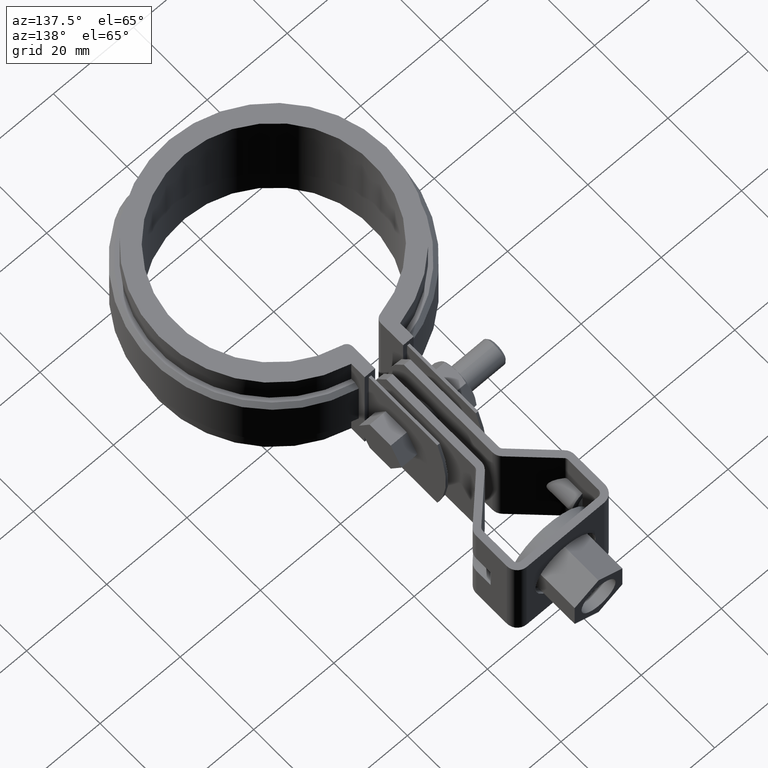
[diagram: clean part render]
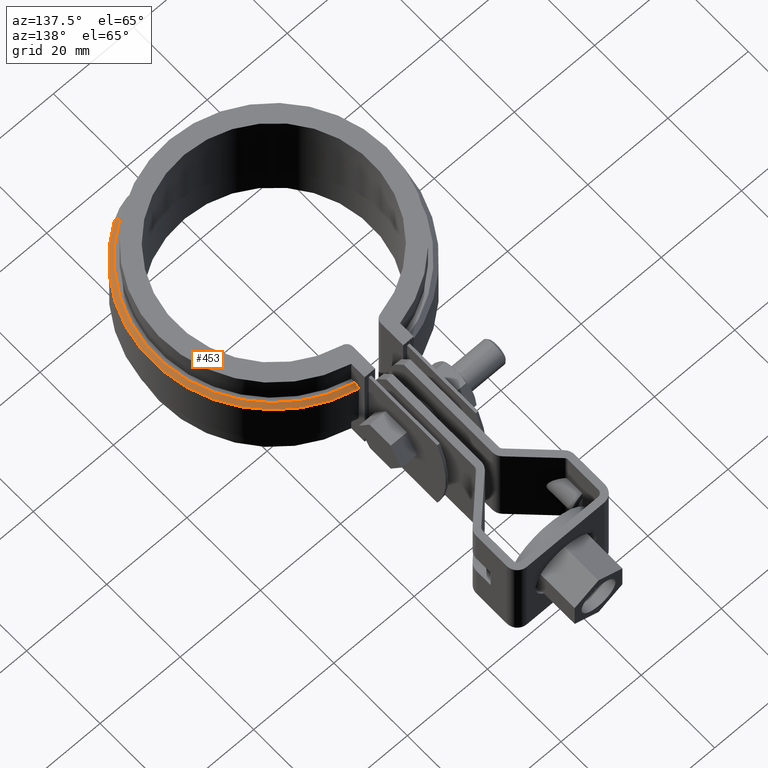
[diagram: same view with one face highlighted and labeled with its STEP entity id]
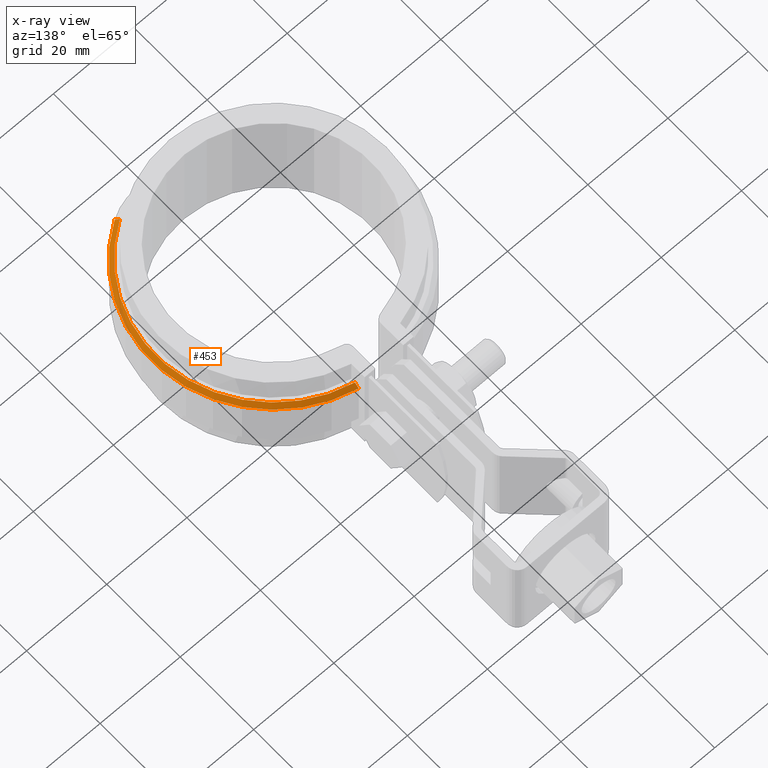
[diagram: x-ray of the same camera — body ghosted, the highlighted face saturated]
A machine part, auxiliary view. The second image highlights one B-rep face of the part: STEP entity #453.
The next image is the same camera in x-ray: the body ghosted, the highlighted face saturated — about 0% of this face is hidden behind the body in this view.
In plain terms, the highlighted conical surface has half-angle 45 deg.
Its self-contained STEP definition (entity closure, byte-faithful):
#453 = ADVANCED_FACE( '', ( #837 ), #838, .T. );
#837 = FACE_OUTER_BOUND( '', #1970, .T. );
#838 = CONICAL_SURFACE( '', #1971, 30.3950000000000, 0.785398163397448 );
#1970 = EDGE_LOOP( '', ( #4644, #4645, #4646, #4647 ) );
#1971 = AXIS2_PLACEMENT_3D( '', #4648, #4649, #4650 );
#4644 = ORIENTED_EDGE( '', *, *, #5866, .F. );
#4645 = ORIENTED_EDGE( '', *, *, #5921, .F. );
#4646 = ORIENTED_EDGE( '', *, *, #5901, .F. );
#4647 = ORIENTED_EDGE( '', *, *, #5920, .F. );
#4648 = CARTESIAN_POINT( '', ( -8.67361737988404E-016, -3.46944695195361E-015, -6.00000000000000 ) );
#4649 = DIRECTION( '', ( 0.000000000000000, 0.000000000000000, -1.00000000000000 ) );
#4650 = DIRECTION( '', ( -1.00000000000000, 0.000000000000000, 0.000000000000000 ) );
#5866 = EDGE_CURVE( '', #6775, #6777, #6778, .T. );
#5901 = EDGE_CURVE( '', #6823, #6839, #6840, .T. );
#5920 = EDGE_CURVE( '', #6777, #6823, #6862, .F. );
#5921 = EDGE_CURVE( '', #6839, #6775, #6863, .T. );
#6775 = VERTEX_POINT( '', #10344 );
#6777 = VERTEX_POINT( '', #10347 );
#6778 = B_SPLINE_CURVE_WITH_KNOTS( '', 3, ( #10348, #10349, #10350, #10351 ), .UNSPECIFIED., .F., .F., ( 4, 4 ), ( 0.000000000000000, 0.00142949551719674 ), .UNSPECIFIED. );
#6823 = VERTEX_POINT( '', #10419 );
#6839 = VERTEX_POINT( '', #10440 );
#6840 = LINE( '', #10441, #10442 );
#6862 = CIRCLE( '', #10476, 30.3950000000000 );
#6863 = CIRCLE( '', #10477, 29.3950000000000 );
#10344 = CARTESIAN_POINT( '', ( 6.10000000000001, 28.7551043294925, -5.00000000000000 ) );
#10347 = CARTESIAN_POINT( '', ( 6.10000000000001, 29.7766019720183, -6.00000000000000 ) );
#10348 = CARTESIAN_POINT( '', ( 6.10000000000001, 28.7551043294925, -5.00000000000000 ) );
#10349 = CARTESIAN_POINT( '', ( 6.10000000000001, 29.0957267367249, -5.33320744537946 ) );
#10350 = CARTESIAN_POINT( '', ( 6.10000000000000, 29.4362218572914, -5.66654505032371 ) );
#10351 = CARTESIAN_POINT( '', ( 6.10000000000000, 29.7766019720182, -6.00000000000000 ) );
#10419 = CARTESIAN_POINT( '', ( 16.0865111739769, -25.7891485561179, -6.00000000000000 ) );
#10440 = CARTESIAN_POINT( '', ( 15.5572625747343, -24.9406817505210, -5.00000000000000 ) );
#10441 = CARTESIAN_POINT( '', ( 16.0865111739768, -25.7891485561179, -6.00000000000000 ) );
#10442 = VECTOR( '', #11530, 1000.00000000000 );
#10476 = AXIS2_PLACEMENT_3D( '', #11561, #11562, #11563 );
#10477 = AXIS2_PLACEMENT_3D( '', #11564, #11565, #11566 );
#11530 = DIRECTION( '', ( -0.374235273457877, 0.599956631849259, 0.707106781186548 ) );
#11561 = CARTESIAN_POINT( '', ( -8.67361737988404E-016, -3.46944695195361E-015, -6.00000000000000 ) );
#11562 = DIRECTION( '', ( 0.000000000000000, 0.000000000000000, 1.00000000000000 ) );
#11563 = DIRECTION( '', ( 1.00000000000000, 0.000000000000000, 0.000000000000000 ) );
#11564 = CARTESIAN_POINT( '', ( -8.67361737988404E-016, -3.46944695195361E-015, -5.00000000000000 ) );
#11565 = DIRECTION( '', ( 0.000000000000000, 0.000000000000000, 1.00000000000000 ) );
#11566 = DIRECTION( '', ( 1.00000000000000, 0.000000000000000, 0.000000000000000 ) );